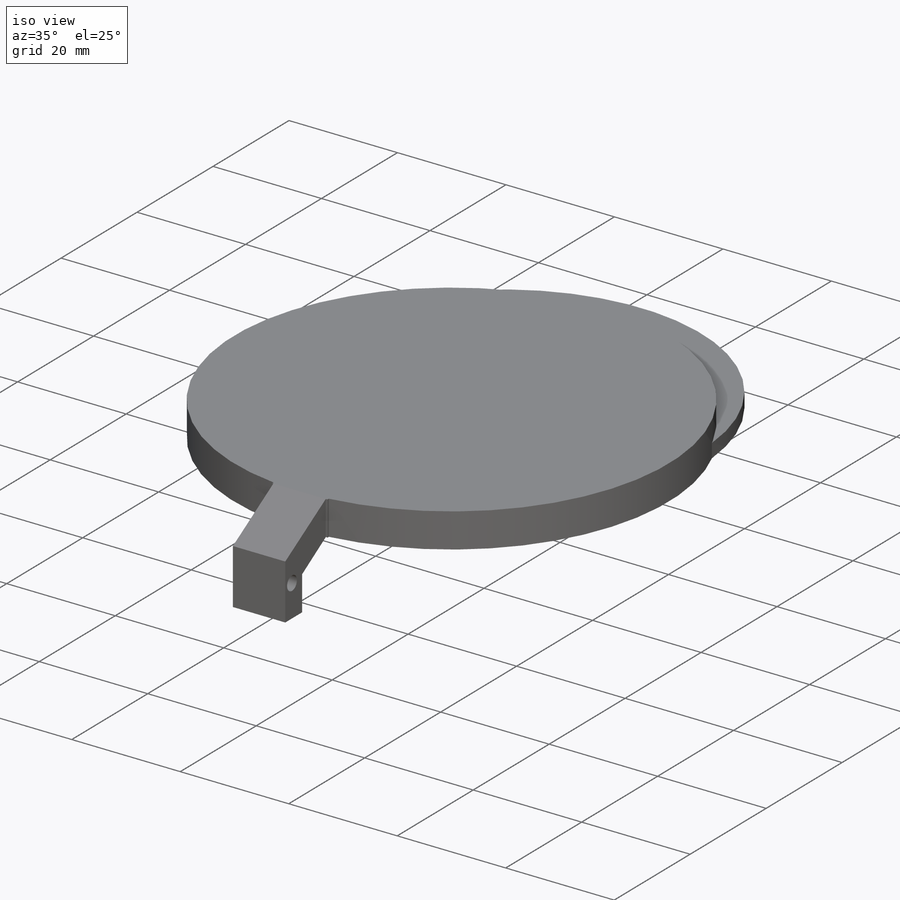
[diagram: iso view]
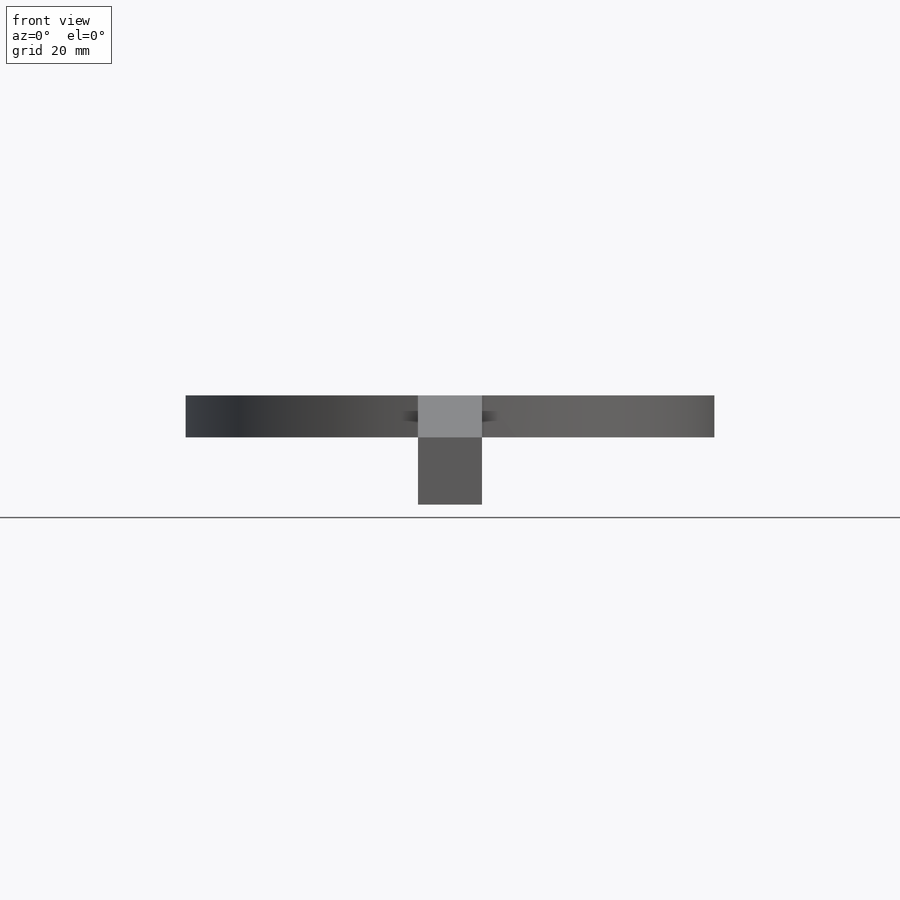
[diagram: front view]
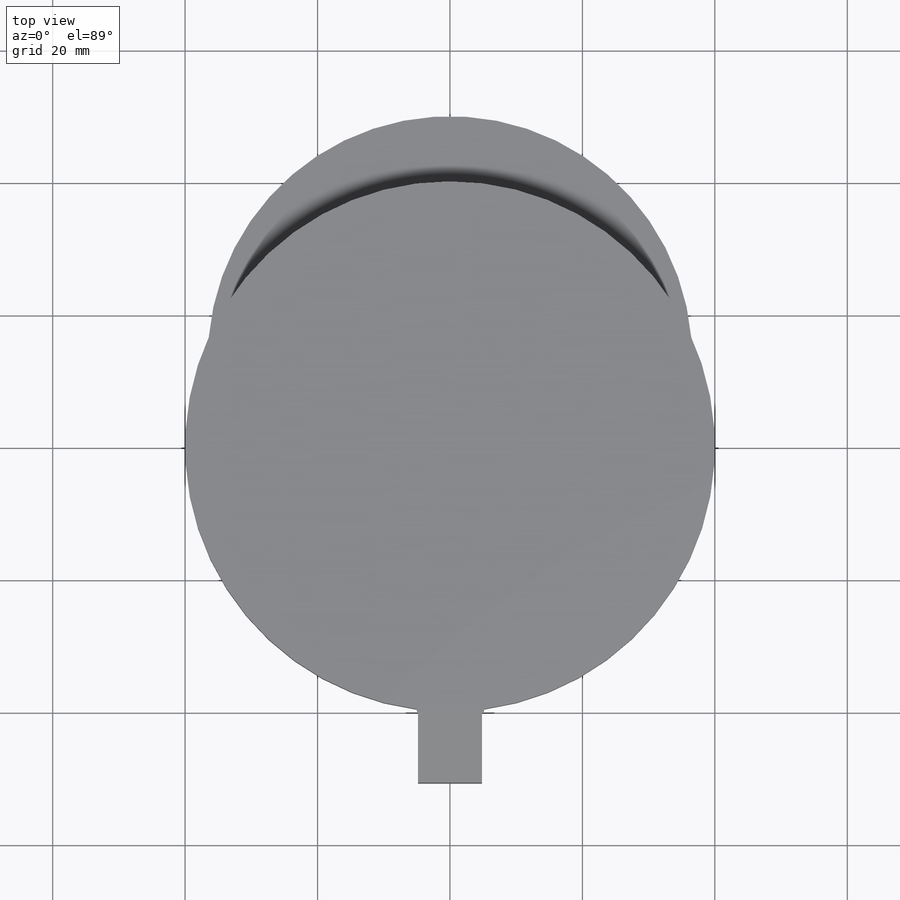
[diagram: top view]
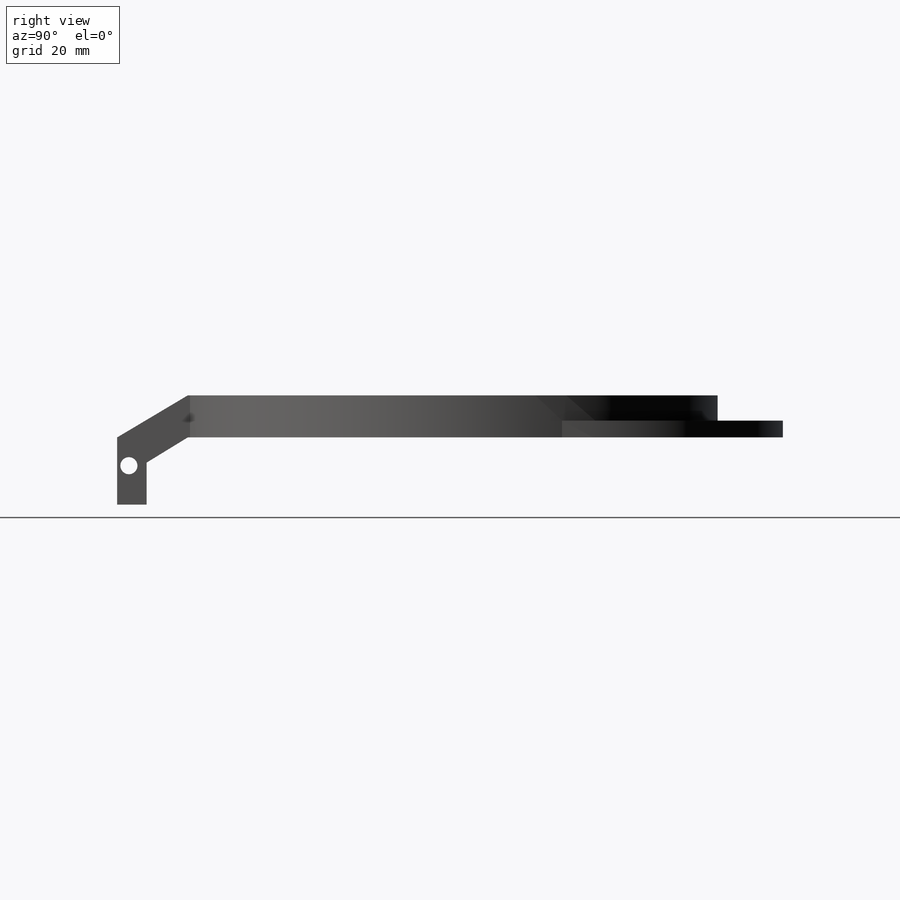
[diagram: right view]
SOLIDWORKS PART (.sldprt)
format: sldprt  version: not decoded by parser v0  size: 215,040 bytes
history: native  units: mm
features: sketch x6, extrude x3, material x1, shell x1, plane x1, cut_extrude x1 (+13 scaffold rows collapsed)
feature tree (26):
  scaffold x13  (default folders/planes/origin — collapsed)
  material  "Material <not specified>"
  sketch  "Sketch1"  dims[D1=80.01mm]
  extrude  "Boss-Extrude1"  Depth=6.35mm
  sketch  "Sketch2"  dims[D2=36.576mm D1=0.0mm]
  extrude  "Boss-Extrude2"  Depth=2.54mm
  shell  "Shell2"  Thickness=2.286mm
  sketch  "Sketch6"  dims[D1=10.668mm D2=4.445mm D3=6.35mm D4=10.16mm D5=6.35mm]
  extrude  "Boss-Extrude3"  Depth=9.652mm
  sketch  "Sketch7"  dims[D1=10.16mm D2=6.35mm]
  plane  "Plane1"  Offset=38.1mm
  sketch  "Sketch9"
  sketch  "Sketch10"
  cut_extrude  "Cut-Extrude1"  [1 undecoded]
decode coverage: 8 of 11 modeling features carry decoded parameters
note: 1 parameter value undecoded
note: suppression state not decoded; provenance and decode notes live in map.json
